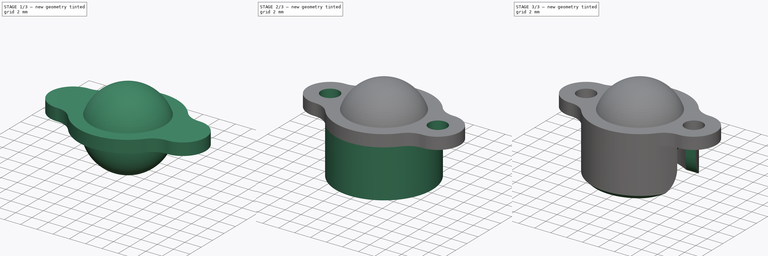
[diagram: build sequence overview — one tinted view per stage of 3, left to right]
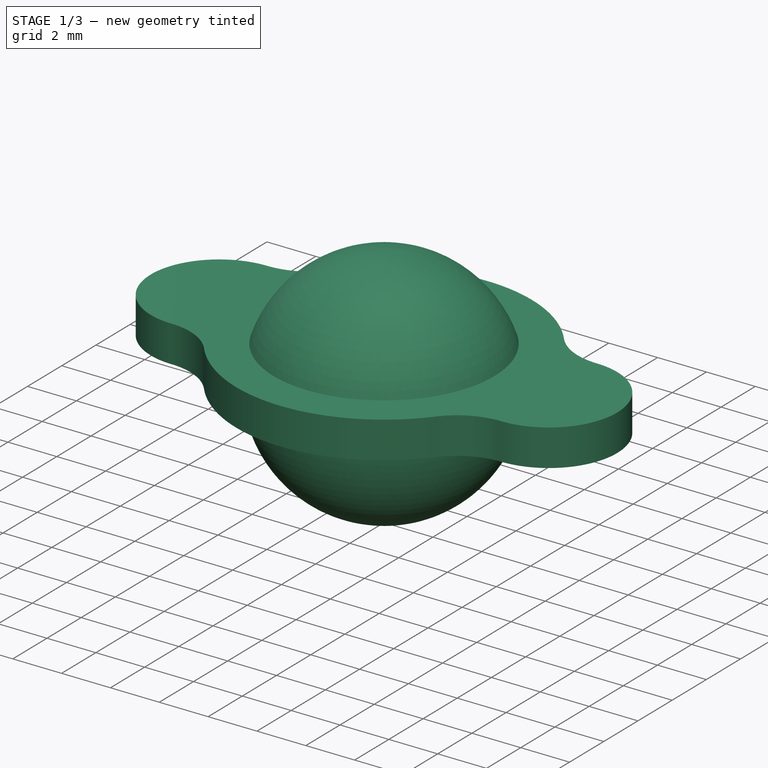
[diagram: stage 1 of 3 — iso view after this stage's code; geometry added in this stage tinted green]
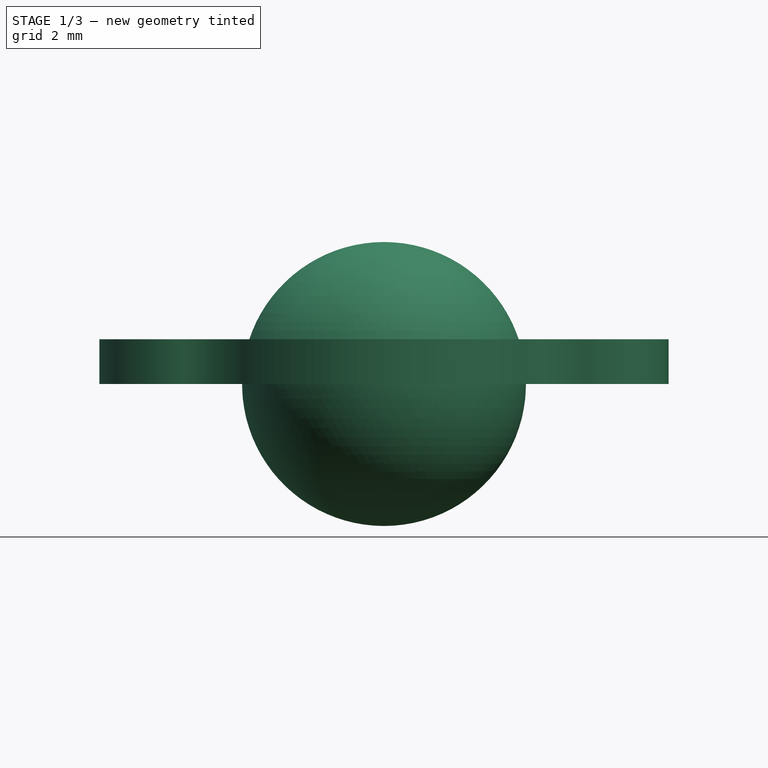
[diagram: stage 1 of 3 — front view after this stage's code; geometry added in this stage tinted green]
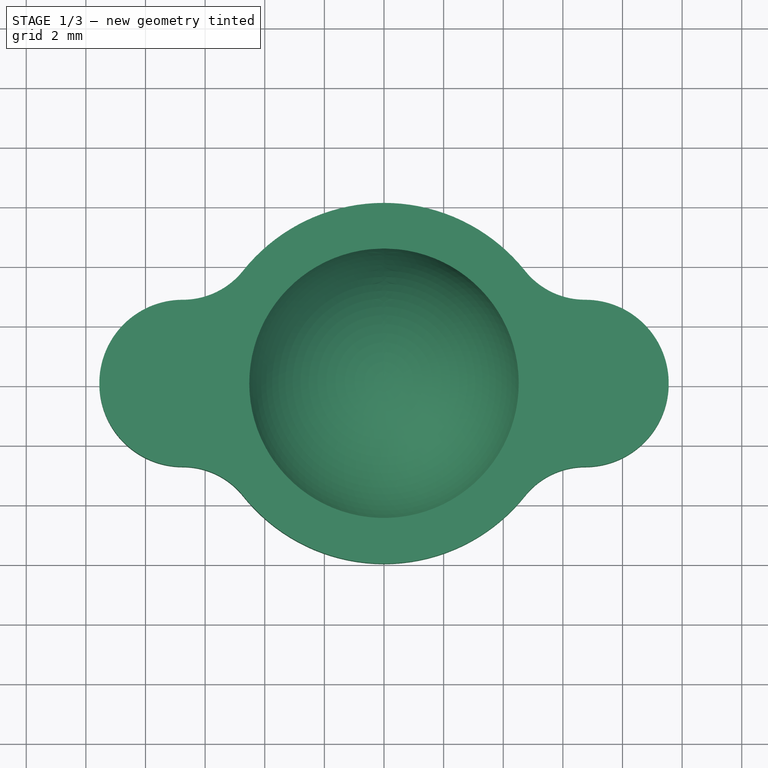
[diagram: stage 1 of 3 — top view after this stage's code; geometry added in this stage tinted green]
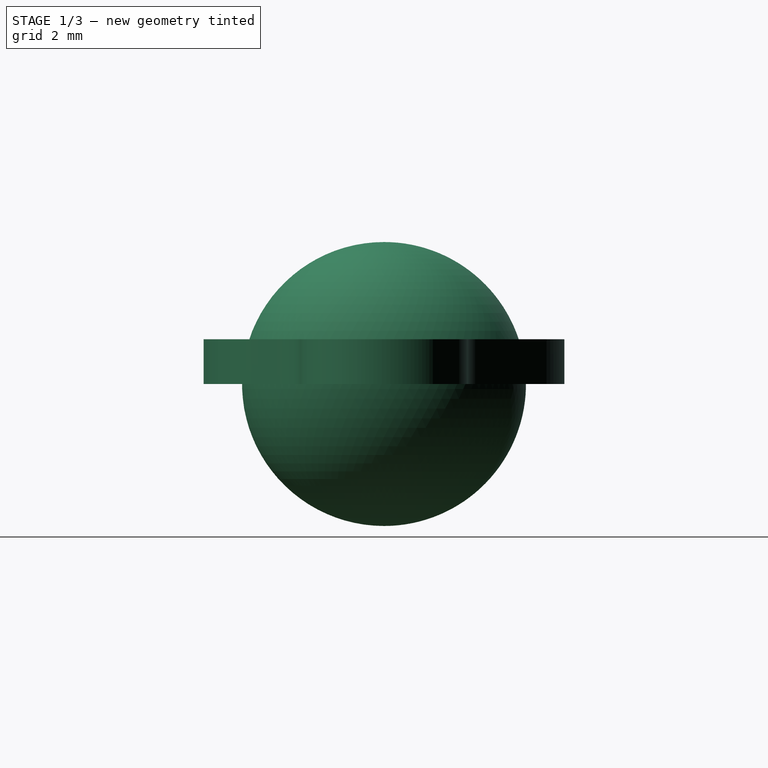
[diagram: stage 1 of 3 — right view after this stage's code; geometry added in this stage tinted green]
FCSTD DOCUMENT  (FreeCAD 0.19R24276 (Git))
Label: Std_BallCaster38
License: All rights reserved
LicenseURL: http://en.wikipedia.org/wiki/All_rights_reserved
objects: Sketcher::SketchObject×6, PartDesign::Pocket×3, PartDesign::Pad×2, PartDesign::Body×2, PartDesign::Chamfer×1, PartDesign::Revolution×1, App::Part×1
note: 22 computed .brp shape members not serialized (recipe doc carries the construction recipe); baked Part::Feature solids carry a one-line shape summary decoded from their .brp

FEATURE [Sketcher::SketchObject] Sketch
  FullyConstrained = true
  MapMode = 5
  Support = -> [XY_Plane001]
  sketch-geometry (15):
    g0: Circle CenterX=0 CenterY=0 CenterZ=0 NormalX=0 NormalY=0 NormalZ=1 AngleXU=0 Radius=6.05
    g1: Circle CenterX=-6.75 CenterY=0 CenterZ=0 NormalX=0 NormalY=0 NormalZ=1 AngleXU=0 Radius=2.8
    g2: Circle CenterX=6.75 CenterY=0 CenterZ=0 NormalX=0 NormalY=0 NormalZ=1 AngleXU=0 Radius=2.8
    g3: GeomPoint X=-9.55 Y=0 Z=0
    g4: GeomPoint X=9.55 Y=0 Z=0
    g5: ArcOfCircle CenterX=-6.75 CenterY=0 CenterZ=0 NormalX=0 NormalY=0 NormalZ=1 AngleXU=0 Radius=2.8 StartAngle=1.5708 EndAngle=4.71239
    g6: ArcOfCircle CenterX=6.75 CenterY=0 CenterZ=0 NormalX=0 NormalY=0 NormalZ=1 AngleXU=0 Radius=2.8 StartAngle=4.71239 EndAngle=7.85398
    g7: ArcOfCircle CenterX=0 CenterY=0 CenterZ=0 NormalX=0 NormalY=0 NormalZ=1 AngleXU=0 Radius=6.05 StartAngle=0.67335 EndAngle=2.46824
    g8: ArcOfCircle CenterX=0 CenterY=0 CenterZ=0 NormalX=0 NormalY=0 NormalZ=1 AngleXU=0 Radius=6.05 StartAngle=3.81494 EndAngle=5.60984
    g9: ArcOfCircle CenterX=-6.75 CenterY=5.38462 CenterZ=0 NormalX=0 NormalY=0 NormalZ=1 AngleXU=0 Radius=2.58462 StartAngle=4.71239 EndAngle=5.60984
    g10: ArcOfCircle CenterX=6.75 CenterY=5.38462 CenterZ=0 NormalX=0 NormalY=0 NormalZ=1 AngleXU=0 Radius=2.58462 StartAngle=3.81494 EndAngle=4.71239
    g11: ArcOfCircle CenterX=6.75 CenterY=-5.38462 CenterZ=0 NormalX=0 NormalY=0 NormalZ=1 AngleXU=0 Radius=2.58462 StartAngle=1.5708 EndAngle=2.46824
    g12: ArcOfCircle CenterX=-6.75 CenterY=-5.38462 CenterZ=0 NormalX=0 NormalY=0 NormalZ=1 AngleXU=0 Radius=2.58462 StartAngle=0.67335 EndAngle=1.5708
    g13: LineSegment StartX=-6.75 StartY=-2.8 StartZ=0 EndX=-6.75 EndY=2.8 EndZ=0
    g14: LineSegment StartX=6.75 StartY=-2.8 StartZ=0 EndX=6.75 EndY=2.8 EndZ=0
  constraints (35):
    c: Coincident(g0,g-1)
    c: Diameter(g0) = 12.1
    c: PointOnObject(g1,g-1)
    c: Equal(g2,g1)
    c: Symmetric(g1,g2,g-1)
    c: PointOnObject(g3,g1)
    c: PointOnObject(g4,g2)
    c: PointOnObject(g3,g-1)
    c: PointOnObject(g4,g-1)
    c: DistanceX(g3,g4) = 19.1
    c: Radius(g2) = 2.8
    c: Coincident(g5,g1)
    c: Coincident(g6,g2)
    c: Coincident(g7,g-1)
    c: Coincident(g8,g7)
    c: Tangent(g5,g9) = 1.5708
    c: Tangent(g7,g9) = 1.5708
    c: Tangent(g6,g10) = 1.5708
    c: Tangent(g7,g10) = 1.5708
    c: Tangent(g6,g11) = 1.5708
    c: Tangent(g8,g11) = 1.5708
    c: Tangent(g8,g12) = 1.5708
    c: Tangent(g5,g12) = 1.5708
    c: Coincident(g13,g5)
    c: Coincident(g13,g5)
    c: Vertical(g13)
    c: Coincident(g14,g6)
    c: Coincident(g14,g6)
    c: PointOnObject(g3,g5)
    c: Vertical(g14)
    c: PointOnObject(g6,g2)
    c: PointOnObject(g8,g0)
    c: PointOnObject(g7,g0)
    c: PointOnObject(g6,g14)
    c: PointOnObject(g5,g13)
FEATURE [PartDesign::Pad] Pad
  Direction = (1,1,1)
  Length = 1.5
  Length2 = 100
  Profile = -> Sketch
  Type = 0
FEATURE [PartDesign::Body] Body  label="BallShell"
  Group = -> [Sketch,Pad,Sketch001,Pocket,Sketch002,Pad001,Sketch003,Pocket001,Chamfer,Sketch004,Pocket002]
  Origin = -> Origin001
  Tip = -> Pocket002
FEATURE [Sketcher::SketchObject] Sketch005
  FullyConstrained = true
  MapMode = 5
  Placement = pos=(0,0,0) rot=(0.57735,0.57735,0.57735;2.0944rad)
  Support = -> [YZ_Plane002]
  sketch-geometry (2):
    g0: LineSegment StartX=-1.9932e-12 StartY=-4.7625 StartZ=0 EndX=1.5e-15 EndY=4.7625 EndZ=0
    g1: ArcOfCircle CenterX=0 CenterY=0 CenterZ=0 NormalX=0 NormalY=0 NormalZ=1 AngleXU=0 Radius=4.7625 StartAngle=4.71239 EndAngle=7.85398
  constraints (6):
    c: Symmetric(g0,g0,g-1)
    c: Coincident(g1,g-1)
    c: Coincident(g1,g0)
    c: Coincident(g1,g0)
    c: Diameter(g1) = 9.525
    c: PointOnObject(g0,g-2)
FEATURE [PartDesign::Revolution] Revolution
  Angle = 360
  Axis = (-2e-16,3e-16,1)
  Base = (0,0,0)
  Placement = pos=(0,0,0) rot=(0.57735,0.57735,0.57735;2.0944rad)
  Profile = -> Sketch005
  ReferenceAxis = -> Sketch005 [V_Axis]
  Reversed = true
FEATURE [PartDesign::Body] Body001  label="BallBearing"
  Group = -> [Sketch005,Revolution]
  Origin = -> Origin002
  Placement = pos=(0,0,-4) rot=(0,0,1;0rad)
  Tip = -> Revolution
FEATURE [App::Part] Part  label="BallCaster"
  Group = -> [Body,Body001]
  Origin = -> Origin
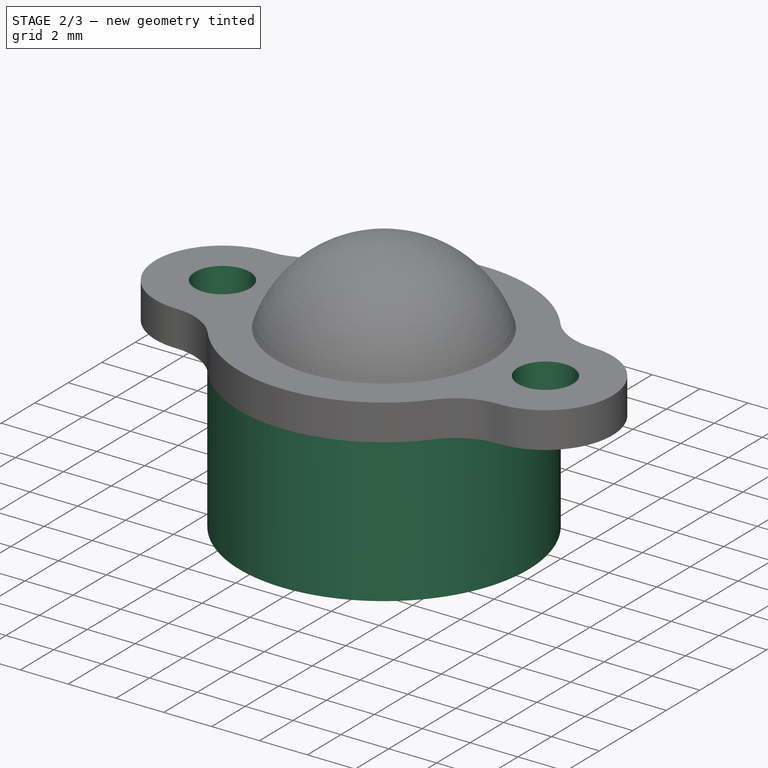
[diagram: stage 2 of 3 — iso view after this stage's code; geometry added in this stage tinted green]
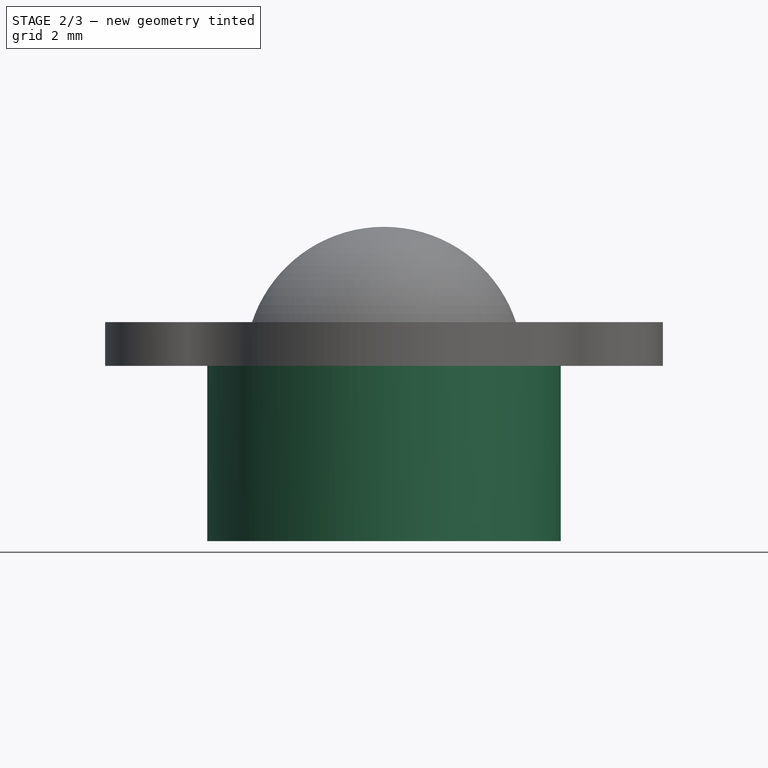
[diagram: stage 2 of 3 — front view after this stage's code; geometry added in this stage tinted green]
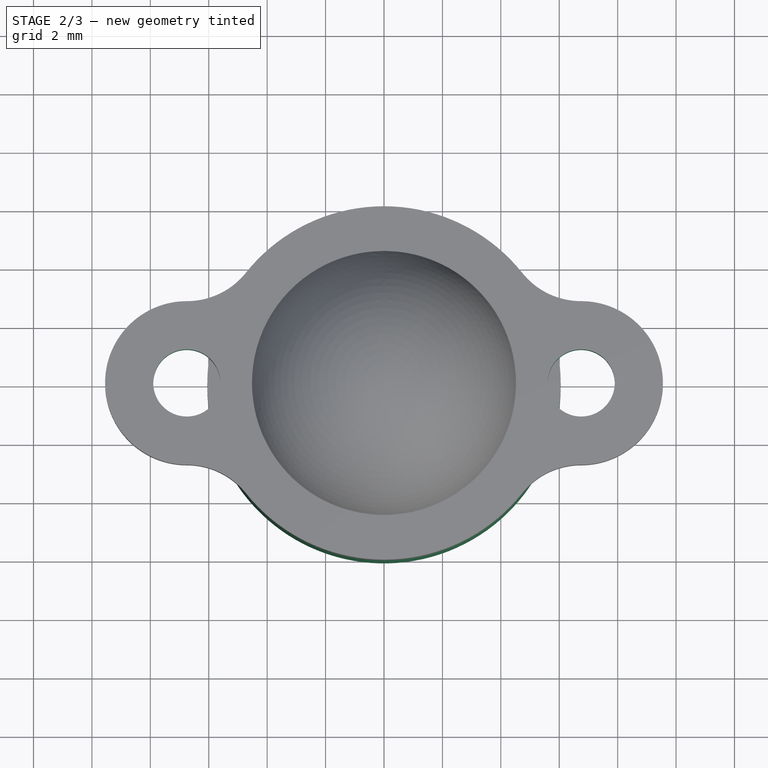
[diagram: stage 2 of 3 — top view after this stage's code; geometry added in this stage tinted green]
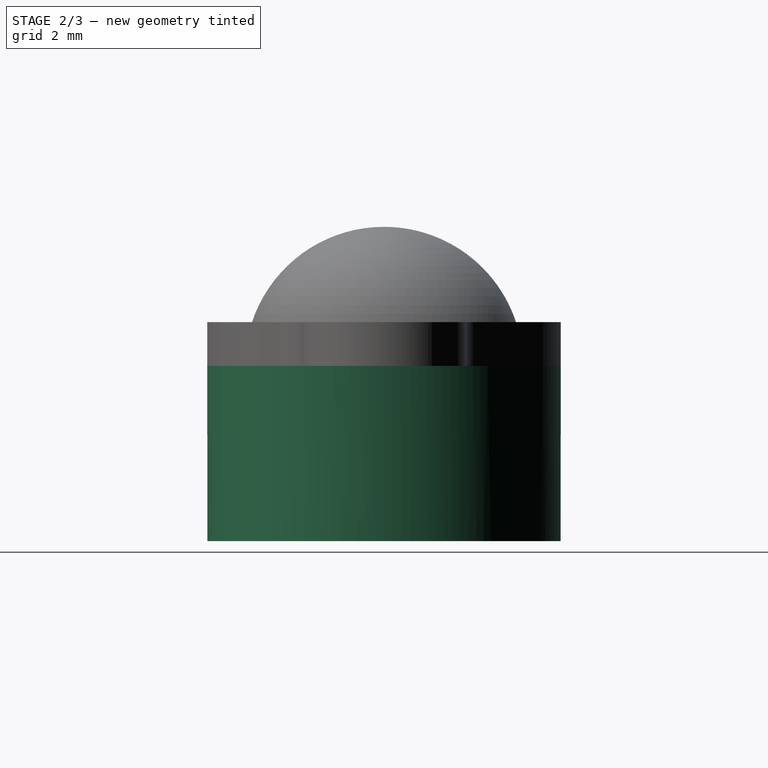
[diagram: stage 2 of 3 — right view after this stage's code; geometry added in this stage tinted green]
FEATURE [Sketcher::SketchObject] Sketch001
  FullyConstrained = true
  MapMode = 5
  Support = -> [XY_Plane001]
  sketch-geometry (3):
    g0: Circle CenterX=0 CenterY=0 CenterZ=0 NormalX=0 NormalY=0 NormalZ=1 AngleXU=0 Radius=2.85
    g1: Circle CenterX=-6.75 CenterY=0 CenterZ=0 NormalX=0 NormalY=0 NormalZ=1 AngleXU=0 Radius=1.15
    g2: Circle CenterX=6.75 CenterY=0 CenterZ=0 NormalX=0 NormalY=0 NormalZ=1 AngleXU=0 Radius=1.15
  constraints (7):
    c: Coincident(g0,g-1)
    c: Diameter(g0) = 5.7
    c: PointOnObject(g1,g-1)
    c: Symmetric(g1,g2,g0)
    c: Equal(g2,g1)
    c: Diameter(g2) = 2.3
    c: DistanceX(g1,g2) = 13.5
FEATURE [PartDesign::Pocket] Pocket
  BaseFeature = -> Pad
  Length = 5
  Length2 = 100
  Profile = -> Sketch001
  Reversed = true
  Type = 1
FEATURE [Sketcher::SketchObject] Sketch002
  FullyConstrained = true
  MapMode = 5
  Support = -> [XY_Plane001]
  sketch-geometry (1):
    g0: Circle CenterX=0 CenterY=0 CenterZ=0 NormalX=0 NormalY=0 NormalZ=1 AngleXU=0 Radius=6.05
  constraints (2):
    c: Coincident(g0,g-1)
    c: Diameter(g0) = 12.1
FEATURE [PartDesign::Pad] Pad001
  BaseFeature = -> Pocket
  Direction = (1,1,1)
  Length = 6
  Length2 = 100
  Profile = -> Sketch002
  Reversed = true
  Type = 0
FEATURE [Sketcher::SketchObject] Sketch003
  FullyConstrained = true
  MapMode = 5
  Support = -> [XY_Plane001]
  sketch-geometry (1):
    g0: Circle CenterX=0 CenterY=0 CenterZ=0 NormalX=0 NormalY=0 NormalZ=1 AngleXU=0 Radius=4.8
  constraints (2):
    c: Coincident(g0,g-1)
    c: Diameter(g0) = 9.6
FEATURE [PartDesign::Pocket] Pocket001
  BaseFeature = -> Pad001
  Length = 5
  Length2 = 100
  Profile = -> Sketch003
  Type = 1
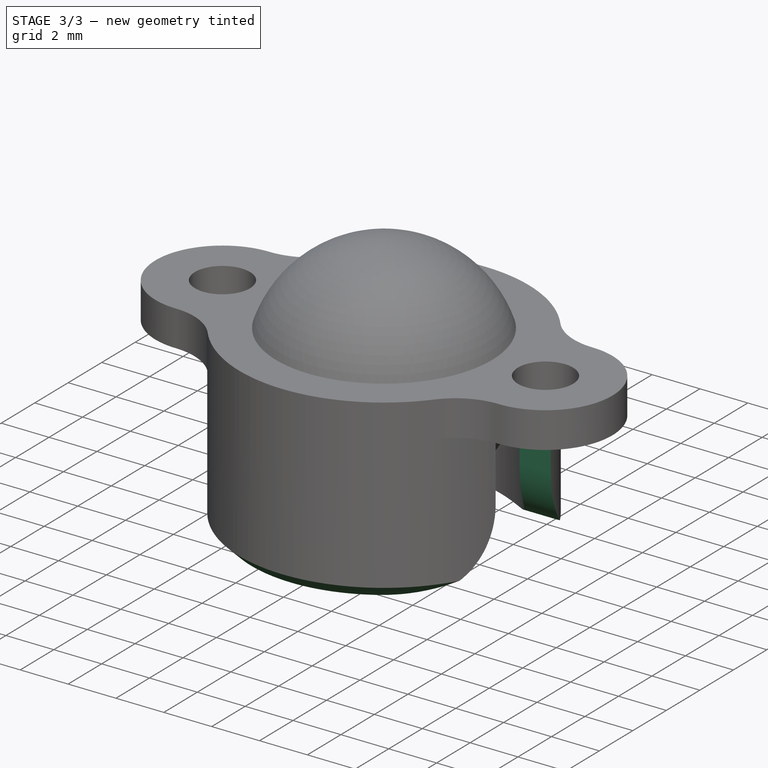
[diagram: stage 3 of 3 — iso view after this stage's code; geometry added in this stage tinted green]
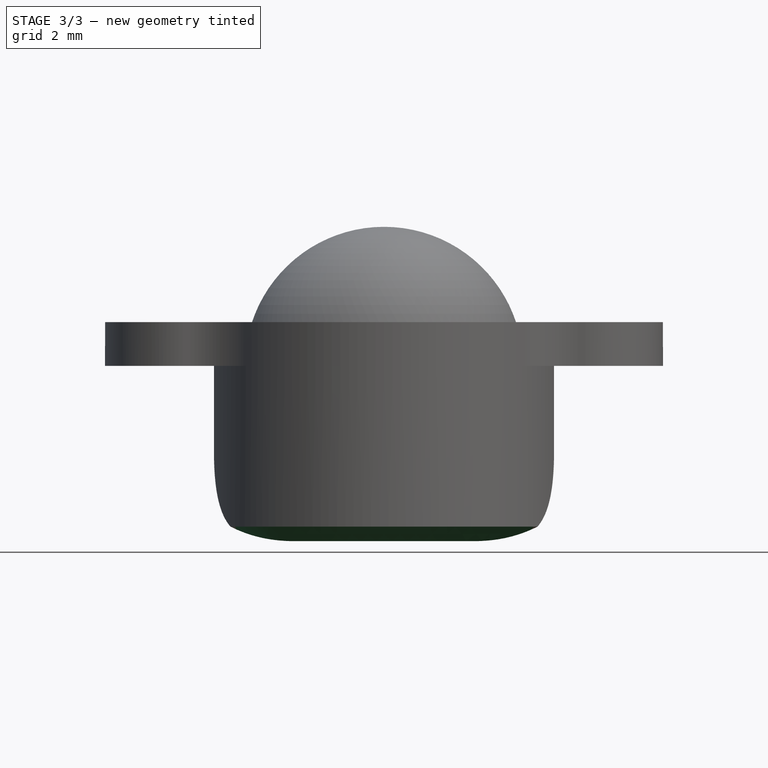
[diagram: stage 3 of 3 — front view after this stage's code; geometry added in this stage tinted green]
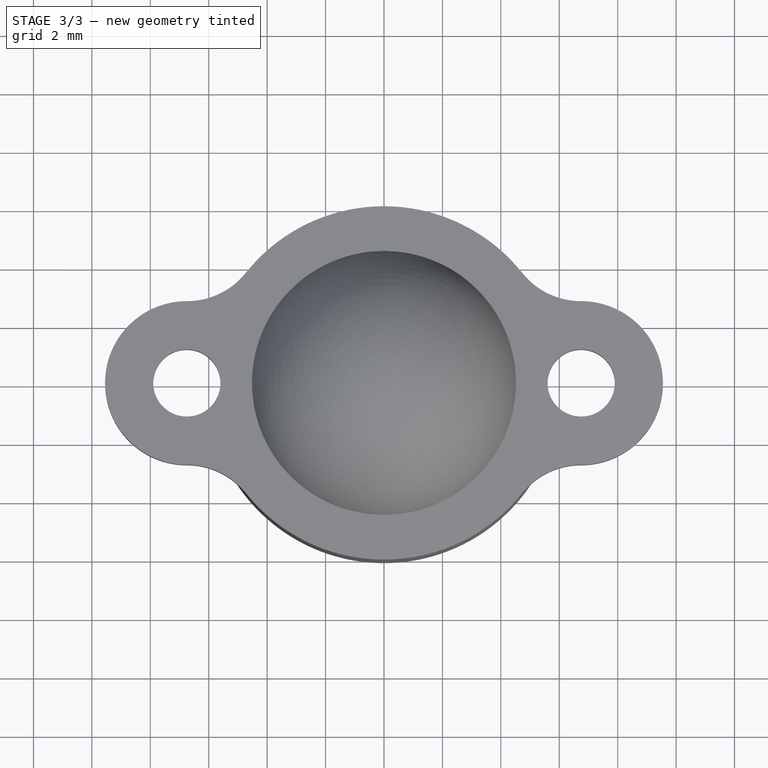
[diagram: stage 3 of 3 — top view after this stage's code; geometry added in this stage tinted green]
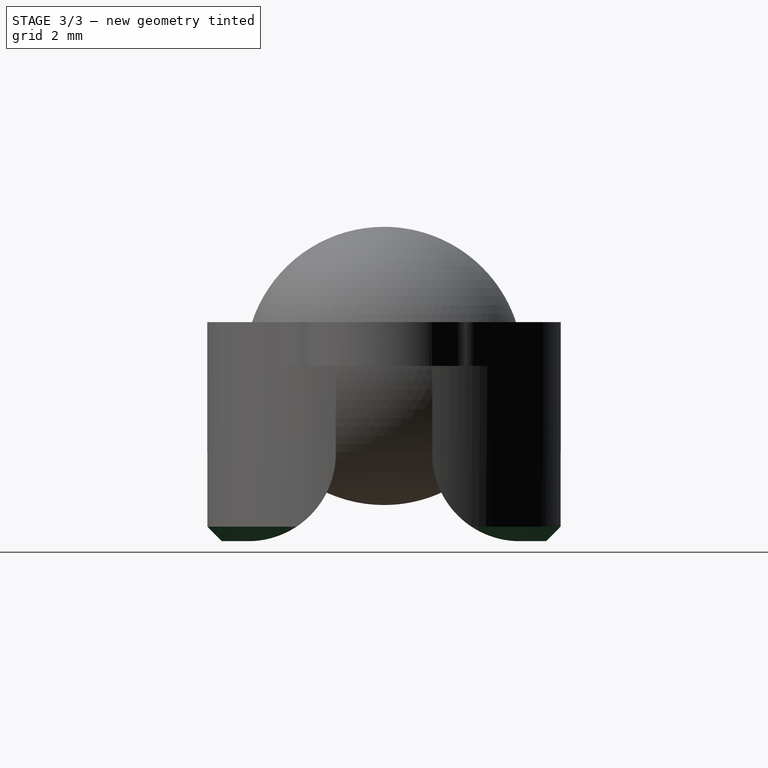
[diagram: stage 3 of 3 — right view after this stage's code; geometry added in this stage tinted green]
FEATURE [PartDesign::Chamfer] Chamfer
  Angle = 45
  Base = -> Pocket001 [Edge20]
  BaseFeature = -> Pocket001
  ChamferType = 0
  FlipDirection = false
  Size = 0.5
  Size2 = 1
  SupportTransform = false
FEATURE [Sketcher::SketchObject] Sketch004
  FullyConstrained = true
  MapMode = 5
  Placement = pos=(0,0,0) rot=(0.57735,0.57735,0.57735;2.0944rad)
  Support = -> [YZ_Plane001]
  sketch-geometry (11):
    g0: LineSegment StartX=-1.65 StartY=0 StartZ=0 EndX=1.65 EndY=0 EndZ=0
    g1: LineSegment StartX=-1.65 StartY=0 StartZ=0 EndX=-1.65 EndY=-3 EndZ=0
    g2: LineSegment StartX=1.65 StartY=0 StartZ=0 EndX=1.65 EndY=-3 EndZ=0
    g3: LineSegment StartX=4.65 StartY=-6 StartZ=0 EndX=10.65 EndY=-6 EndZ=0
    g4: LineSegment StartX=-4.65 StartY=-6 StartZ=0 EndX=-10.65 EndY=-6 EndZ=0
    g5: LineSegment StartX=-10.65 StartY=-6 StartZ=0 EndX=-10.65 EndY=-12 EndZ=0
    g6: LineSegment StartX=-10.65 StartY=-12 StartZ=0 EndX=10.65 EndY=-12 EndZ=0
    g7: LineSegment StartX=10.65 StartY=-6 StartZ=0 EndX=10.65 EndY=-12 EndZ=0
    g8: ArcOfCircle CenterX=-4.65 CenterY=-3 CenterZ=0 NormalX=0 NormalY=0 NormalZ=1 AngleXU=0 Radius=3 StartAngle=4.71239 EndAngle=6.28319
    g9: ArcOfCircle CenterX=4.65 CenterY=-3 CenterZ=0 NormalX=0 NormalY=0 NormalZ=1 AngleXU=0 Radius=3 StartAngle=3.14159 EndAngle=4.71239
    g10: LineSegment StartX=-1.65 StartY=-3 StartZ=0 EndX=1.65 EndY=-3 EndZ=0
  constraints (29):
    c: Horizontal(g0)
    c: Symmetric(g0,g0,g-1)
    c: Coincident(g1,g0)
    c: Vertical(g1)
    c: Coincident(g2,g0)
    c: Vertical(g2)
    c: DistanceX(g0,g0) = 3.3
    c: Horizontal(g3)
    c: Horizontal(g4)
    c: Coincident(g5,g4)
    c: Vertical(g5)
    c: Coincident(g6,g5)
    c: Horizontal(g6)
    c: Coincident(g7,g3)
    c: Coincident(g7,g6)
    c: Vertical(g7)
    c: Tangent(g4,g8) = 1.5708
    c: Tangent(g1,g8) = 1.5708
    c: Tangent(g2,g9) = -1.5708
    c: Tangent(g3,g9) = -1.5708
    c: Equal(g9,g8)
    c: Coincident(g10,g1)
    c: Coincident(g10,g2)
    c: Horizontal(g10)
    c: Distance(g3) = 6
    c: Equal(g3,g4)
    c: Distance(g7) = 6
    c: DistanceY(g2,g0) = 3
    c: DistanceY(g3,g0) = 6
FEATURE [PartDesign::Pocket] Pocket002
  BaseFeature = -> Chamfer
  Length = 5
  Length2 = 100
  Midplane = true
  Profile = -> Sketch004
  Type = 1
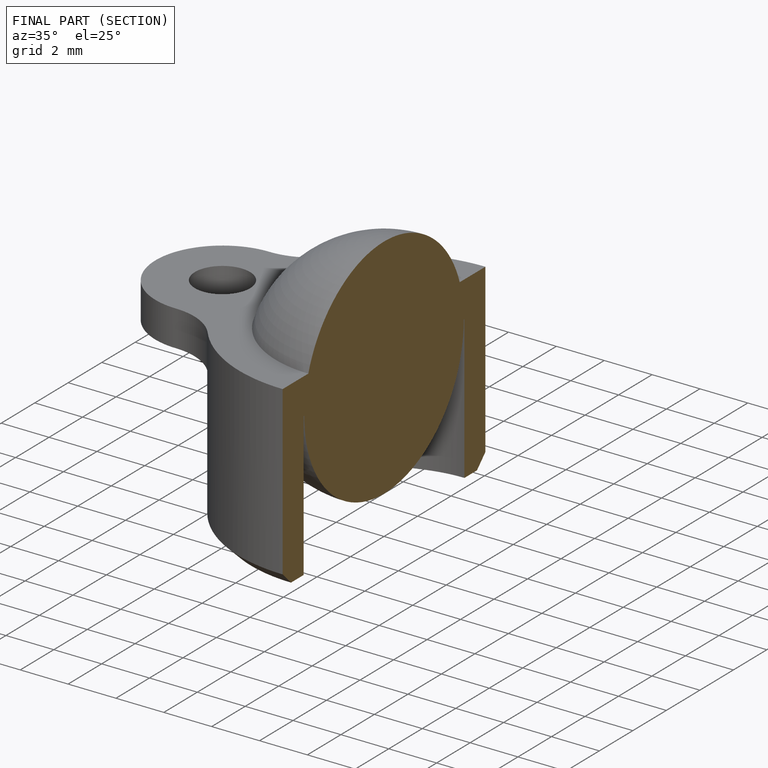
[diagram: finished part — half-section view (interior)]
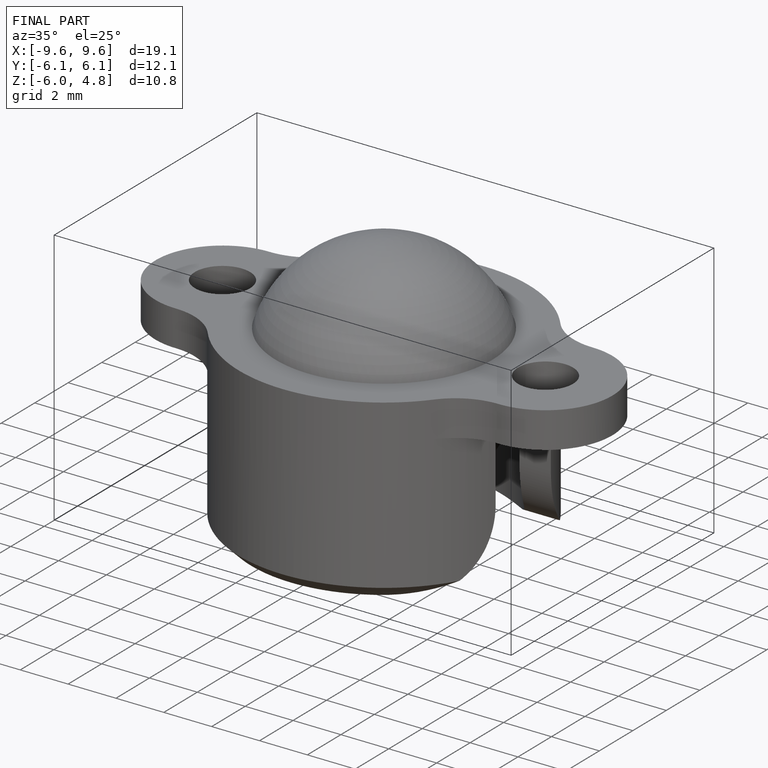
[diagram: finished part — iso view with bounding-box wireframe]
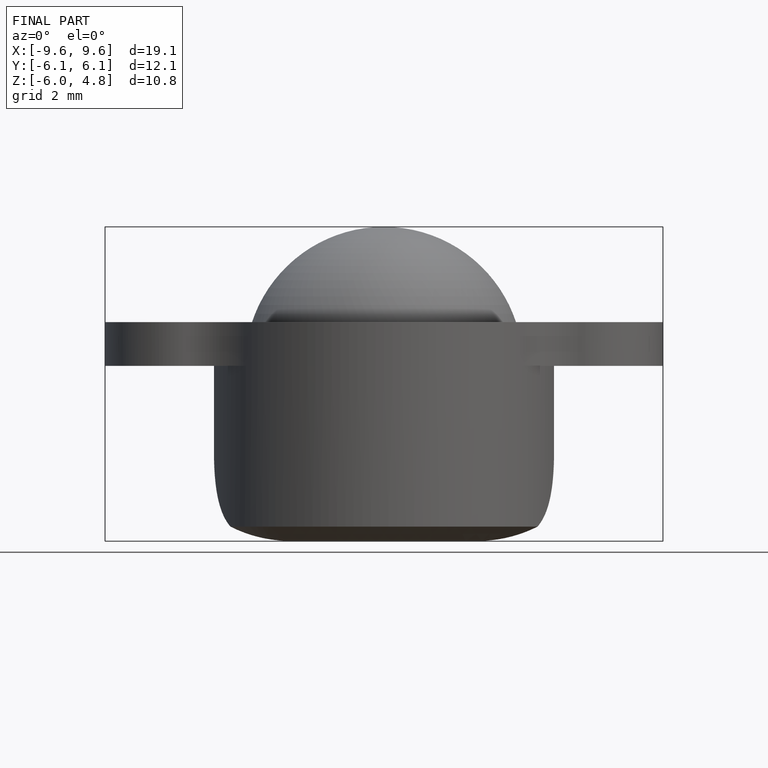
[diagram: finished part — front view with bounding-box wireframe]
